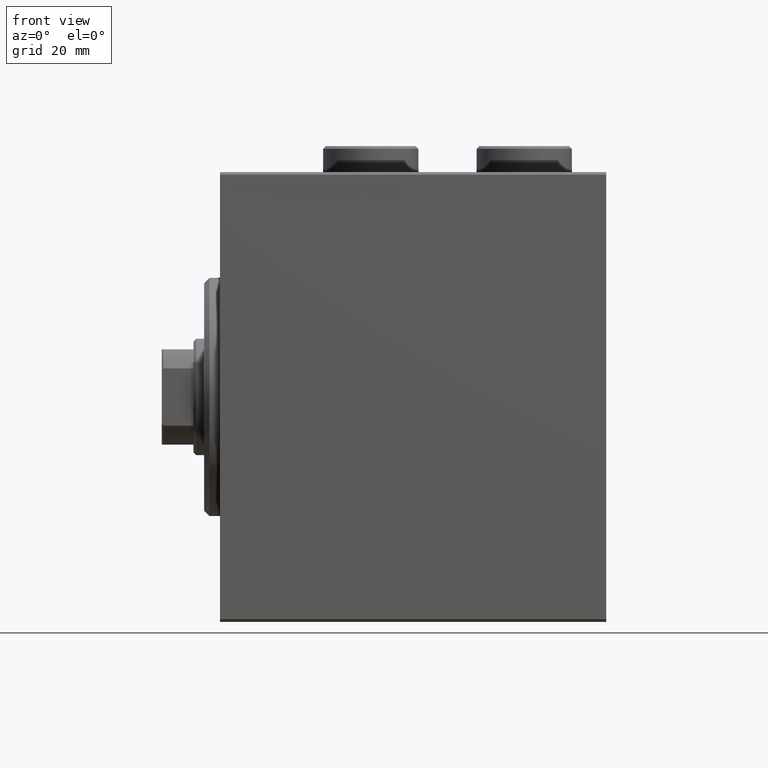
[diagram: clean part render]
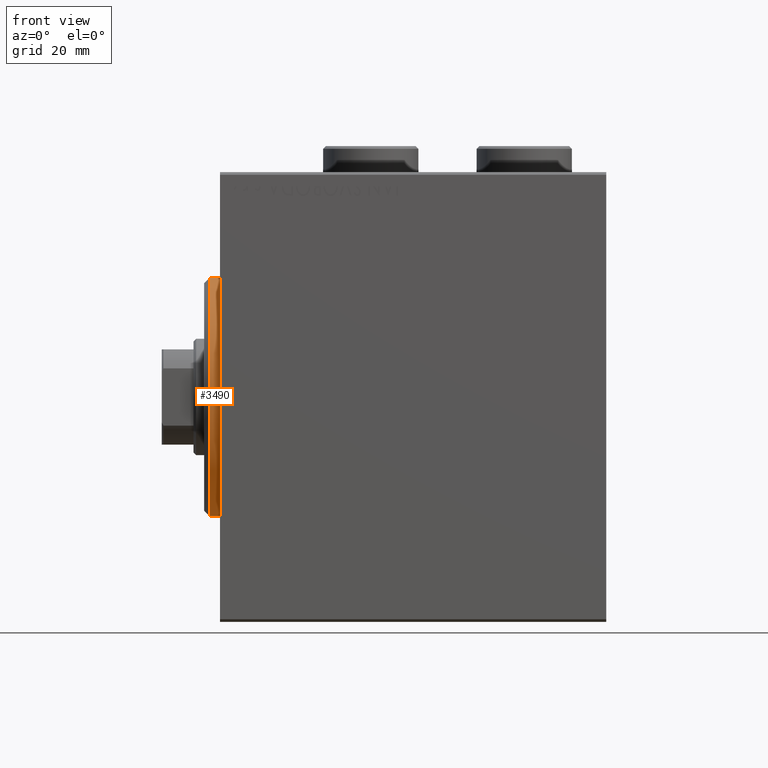
[diagram: same view with one face highlighted and labeled with its STEP entity id]
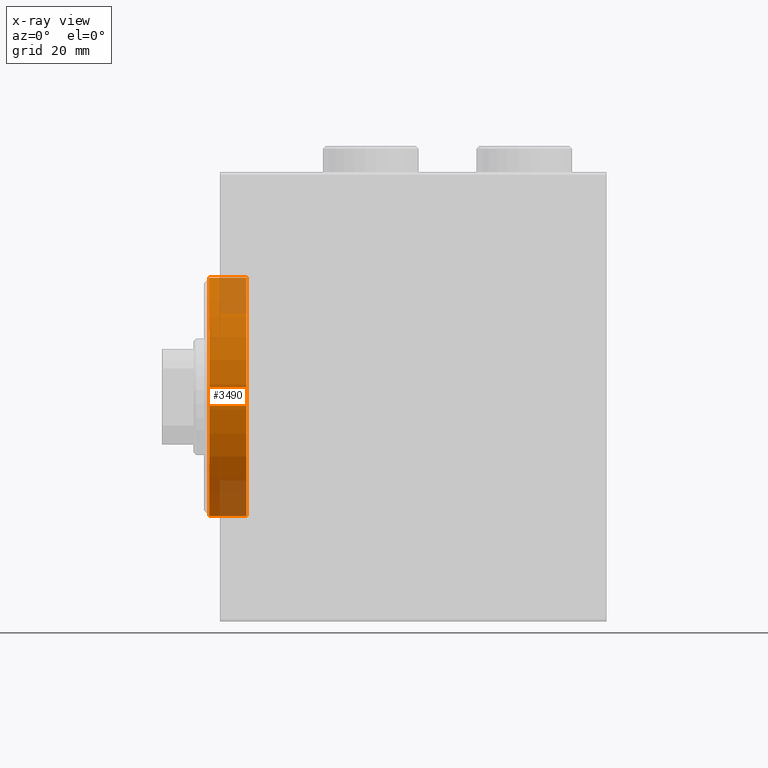
[diagram: x-ray of the same camera — body ghosted, the highlighted face saturated]
A machine part, front view. The second image highlights one B-rep face of the part: STEP entity #3490.
The next image is the same camera in x-ray: the body ghosted, the highlighted face saturated — about 21% of this face is hidden behind the body in this view.
In plain terms, the highlighted cylindrical surface (partial cylindrical patch) has radius 22.5 mm, axis along (1, -0, -0).
Its self-contained STEP definition (entity closure, byte-faithful):
#1726 = ORIENTED_EDGE ( 'NONE', *, *, #40373, .F. ) ;
#1773 = ORIENTED_EDGE ( 'NONE', *, *, #18742, .T. ) ;
#3161 = AXIS2_PLACEMENT_3D ( 'NONE', #30743, #36958, #12587 ) ;
#3490 = ADVANCED_FACE ( 'NONE', ( #16682 ), #41481, .T. ) ;
#4235 = CARTESIAN_POINT ( 'NONE',  ( 3.000000000000000000, 2.755455298081545172E-15, -22.50000000000000355 ) ) ;
#5388 = VERTEX_POINT ( 'NONE', #28697 ) ;
#8700 = CARTESIAN_POINT ( 'NONE',  ( -5.000000000000000000, 0.000000000000000000, 0.000000000000000000 ) ) ;
#8871 = CARTESIAN_POINT ( 'NONE',  ( -5.000000000000000000, 2.755455298081545172E-15, -22.50000000000000355 ) ) ;
#10077 = CARTESIAN_POINT ( 'NONE',  ( 1.999999999999992228, 2.755455298081545172E-15, -22.50000000000000355 ) ) ;
#10461 = DIRECTION ( 'NONE',  ( -1.000000000000000000, -0.000000000000000000, -0.000000000000000000 ) ) ;
#11578 = LINE ( 'NONE', #4235, #33000 ) ;
#12587 = DIRECTION ( 'NONE',  ( 0.000000000000000000, 0.000000000000000000, -1.000000000000000000 ) ) ;
#15010 = VERTEX_POINT ( 'NONE', #8871 ) ;
#16077 = ORIENTED_EDGE ( 'NONE', *, *, #44927, .F. ) ;
#16352 = VERTEX_POINT ( 'NONE', #24194 ) ;
#16682 = FACE_OUTER_BOUND ( 'NONE', #36391, .T. ) ;
#16903 = DIRECTION ( 'NONE',  ( 0.000000000000000000, 0.000000000000000000, 1.000000000000000000 ) ) ;
#17899 = VECTOR ( 'NONE', #37905, 1000.000000000000000 ) ;
#18742 = EDGE_CURVE ( 'NONE', #20433, #15010, #11578, .T. ) ;
#20433 = VERTEX_POINT ( 'NONE', #10077 ) ;
#22727 = DIRECTION ( 'NONE',  ( -1.000000000000000000, 0.000000000000000000, 0.000000000000000000 ) ) ;
#24194 = CARTESIAN_POINT ( 'NONE',  ( -5.000000000000000000, 0.000000000000000000, 22.50000000000000355 ) ) ;
#25160 = DIRECTION ( 'NONE',  ( -1.000000000000000000, -0.000000000000000000, -0.000000000000000000 ) ) ;
#25190 = CIRCLE ( 'NONE', #3161, 22.50000000000000355 ) ;
#27213 = EDGE_CURVE ( 'NONE', #5388, #20433, #25190, .T. ) ;
#28697 = CARTESIAN_POINT ( 'NONE',  ( 1.999999999999992228, 0.000000000000000000, 22.50000000000000355 ) ) ;
#28766 = AXIS2_PLACEMENT_3D ( 'NONE', #8700, #22727, #33965 ) ;
#30362 = CARTESIAN_POINT ( 'NONE',  ( 3.000000000000000000, 0.000000000000000000, 22.50000000000000355 ) ) ;
#30743 = CARTESIAN_POINT ( 'NONE',  ( 1.999999999999992228, 0.000000000000000000, 0.000000000000000000 ) ) ;
#32432 = CIRCLE ( 'NONE', #28766, 22.50000000000000355 ) ;
#33000 = VECTOR ( 'NONE', #25160, 1000.000000000000000 ) ;
#33965 = DIRECTION ( 'NONE',  ( 0.000000000000000000, 0.000000000000000000, 1.000000000000000000 ) ) ;
#34146 = CARTESIAN_POINT ( 'NONE',  ( 3.000000000000000000, 0.000000000000000000, 0.000000000000000000 ) ) ;
#36391 = EDGE_LOOP ( 'NONE', ( #44745, #1773, #1726, #16077 ) ) ;
#36958 = DIRECTION ( 'NONE',  ( -1.000000000000000000, 0.000000000000000000, 0.000000000000000000 ) ) ;
#37905 = DIRECTION ( 'NONE',  ( -1.000000000000000000, -0.000000000000000000, -0.000000000000000000 ) ) ;
#40373 = EDGE_CURVE ( 'NONE', #16352, #15010, #32432, .T. ) ;
#41481 = CYLINDRICAL_SURFACE ( 'NONE', #44424, 22.50000000000000355 ) ;
#44129 = LINE ( 'NONE', #30362, #17899 ) ;
#44424 = AXIS2_PLACEMENT_3D ( 'NONE', #34146, #10461, #16903 ) ;
#44745 = ORIENTED_EDGE ( 'NONE', *, *, #27213, .T. ) ;
#44927 = EDGE_CURVE ( 'NONE', #5388, #16352, #44129, .T. ) ;